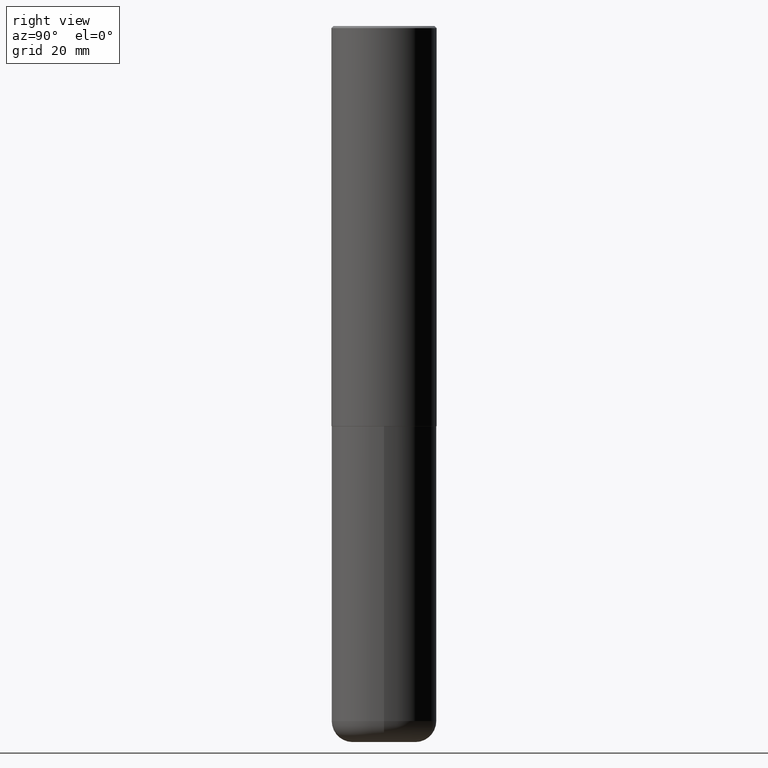
[diagram: clean part render]
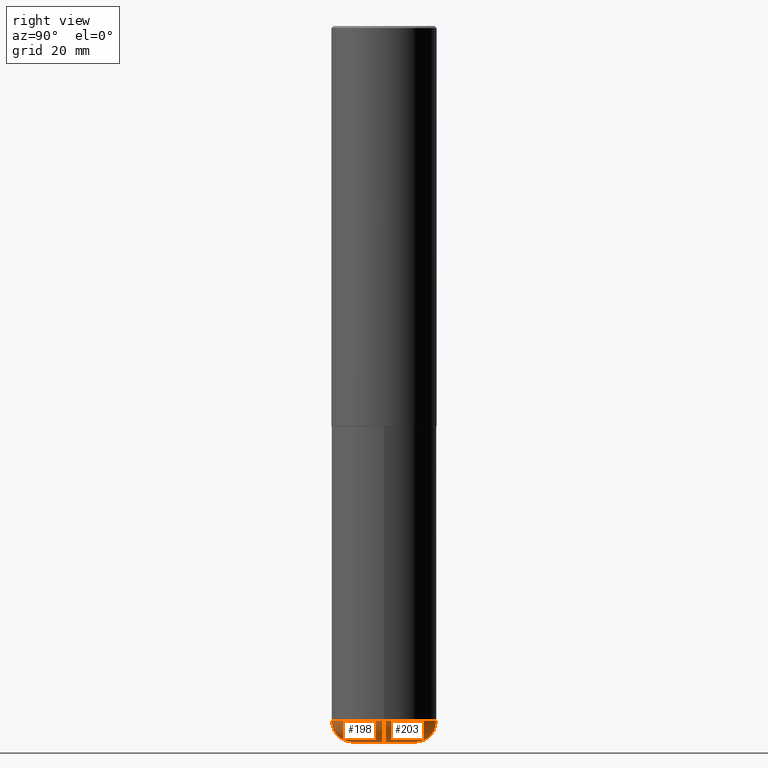
[diagram: same view with one multi-face feature highlighted, each face labeled with its STEP entity id]
A machine part, right view. The highlighted faces form ONE feature: a constant-radius fillet chain: 2 tangent blend faces with common blend radius 5.0013 mm. The faces share edges in the B-rep.
Their STEP definitions:
[1] entity #203 (Torus):
#29 = TOROIDAL_SURFACE ( 'NONE', #221, 0.2952499999999999569, 0.1968999999999996031 ) ;
#46 = CIRCLE ( 'NONE', #351, 0.1968999999999995754 ) ;
#69 = DIRECTION ( 'NONE',  ( -2.445468806185136597E-29, 3.491481338843145583E-15, 1.000000000000000000 ) ) ;
#71 = VERTEX_POINT ( 'NONE', #281 ) ;
#75 = DIRECTION ( 'NONE',  ( 1.000000000000000000, -6.982962677686273021E-15, 0.000000000000000000 ) ) ;
#93 = VERTEX_POINT ( 'NONE', #128 ) ;
#110 = DIRECTION ( 'NONE',  ( -6.982962677686266711E-15, -1.000000000000000000, 3.491481338843145583E-15 ) ) ;
#115 = CARTESIAN_POINT ( 'NONE',  ( -0.4921499999999997543, -1.918372670308173998E-14, -6.495999999999999552 ) ) ;
#128 = CARTESIAN_POINT ( 'NONE',  ( -0.2952500000000000124, -2.022699236424666989E-14, -6.692899999999998961 ) ) ;
#135 = FACE_OUTER_BOUND ( 'NONE', #361, .T. ) ;
#140 = AXIS2_PLACEMENT_3D ( 'NONE', #141, #208, #75 ) ;
#141 = CARTESIAN_POINT ( 'NONE',  ( 1.636727817291649742E-28, -2.336813545274328465E-14, -6.692899999999998961 ) ) ;
#147 = CARTESIAN_POINT ( 'NONE',  ( 1.588576536497864771E-28, -2.268066277712507367E-14, -6.495999999999999552 ) ) ;
#148 = CIRCLE ( 'NONE', #379, 0.1968999999999995754 ) ;
#165 = CARTESIAN_POINT ( 'NONE',  ( 0.4921499999999997543, -2.611732785894836787E-14, -6.495999999999999552 ) ) ;
#166 = CARTESIAN_POINT ( 'NONE',  ( 1.588576536497864771E-28, -2.268066277712507367E-14, -6.495999999999999552 ) ) ;
#173 = AXIS2_PLACEMENT_3D ( 'NONE', #147, #69, #239 ) ;
#180 = DIRECTION ( 'NONE',  ( 1.000000000000000000, -6.982962677686270655E-15, 0.000000000000000000 ) ) ;
#190 = EDGE_CURVE ( 'NONE', #93, #404, #46, .T. ) ;
#200 = DIRECTION ( 'NONE',  ( 7.105427357601001859E-15, 1.000000000000000000, -3.491481338843145583E-15 ) ) ;
#203 = ADVANCED_FACE ( 'NONE', ( #135 ), #29, .T. ) ;
#208 = DIRECTION ( 'NONE',  ( -2.445468806185136597E-29, 3.491481338843145583E-15, 1.000000000000000000 ) ) ;
#210 = ORIENTED_EDGE ( 'NONE', *, *, #333, .F. ) ;
#221 = AXIS2_PLACEMENT_3D ( 'NONE', #166, #356, #324 ) ;
#236 = VERTEX_POINT ( 'NONE', #165 ) ;
#239 = DIRECTION ( 'NONE',  ( 1.000000000000000000, -6.982962677686265922E-15, 0.000000000000000000 ) ) ;
#268 = ORIENTED_EDGE ( 'NONE', *, *, #413, .T. ) ;
#272 = CARTESIAN_POINT ( 'NONE',  ( 0.2952499999999999569, -2.474238250771194590E-14, -6.495999999999999552 ) ) ;
#281 = CARTESIAN_POINT ( 'NONE',  ( 0.2952500000000000124, -2.542985518333015688E-14, -6.692899999999998961 ) ) ;
#286 = CIRCLE ( 'NONE', #140, 0.2952500000000000124 ) ;
#324 = DIRECTION ( 'NONE',  ( 1.000000000000000000, -6.982962677686264344E-15, 4.883557194083111780E-29 ) ) ;
#333 = EDGE_CURVE ( 'NONE', #71, #236, #148, .T. ) ;
#351 = AXIS2_PLACEMENT_3D ( 'NONE', #354, #200, #389 ) ;
#354 = CARTESIAN_POINT ( 'NONE',  ( -0.2952499999999999569, -2.058278534979337620E-14, -6.495999999999999552 ) ) ;
#356 = DIRECTION ( 'NONE',  ( -2.445468806185136597E-29, 3.491481338843145583E-15, 1.000000000000000000 ) ) ;
#361 = EDGE_LOOP ( 'NONE', ( #268, #363, #401, #210 ) ) ;
#363 = ORIENTED_EDGE ( 'NONE', *, *, #190, .T. ) ;
#379 = AXIS2_PLACEMENT_3D ( 'NONE', #272, #110, #180 ) ;
#381 = EDGE_CURVE ( 'NONE', #236, #404, #392, .T. ) ;
#389 = DIRECTION ( 'NONE',  ( -1.000000000000000000, 7.105427357601008170E-15, 0.000000000000000000 ) ) ;
#392 = CIRCLE ( 'NONE', #173, 0.4921499999999999764 ) ;
#401 = ORIENTED_EDGE ( 'NONE', *, *, #381, .F. ) ;
#404 = VERTEX_POINT ( 'NONE', #115 ) ;
#413 = EDGE_CURVE ( 'NONE', #71, #93, #286, .T. ) ;
[2] entity #198 (Torus):
#9 = ORIENTED_EDGE ( 'NONE', *, *, #395, .T. ) ;
#11 = DIRECTION ( 'NONE',  ( -2.445468806185136597E-29, 3.491481338843145583E-15, 1.000000000000000000 ) ) ;
#15 = EDGE_LOOP ( 'NONE', ( #95, #9, #349, #216 ) ) ;
#16 = DIRECTION ( 'NONE',  ( 1.000000000000000000, -6.982962677686265922E-15, 0.000000000000000000 ) ) ;
#17 = AXIS2_PLACEMENT_3D ( 'NONE', #231, #68, #32 ) ;
#32 = DIRECTION ( 'NONE',  ( 1.000000000000000000, -6.982962677686264344E-15, 4.883557194083111780E-29 ) ) ;
#46 = CIRCLE ( 'NONE', #351, 0.1968999999999995754 ) ;
#67 = AXIS2_PLACEMENT_3D ( 'NONE', #72, #405, #16 ) ;
#68 = DIRECTION ( 'NONE',  ( -2.445468806185136597E-29, 3.491481338843145583E-15, 1.000000000000000000 ) ) ;
#71 = VERTEX_POINT ( 'NONE', #281 ) ;
#72 = CARTESIAN_POINT ( 'NONE',  ( 1.588576536497864771E-28, -2.268066277712507367E-14, -6.495999999999999552 ) ) ;
#73 = TOROIDAL_SURFACE ( 'NONE', #17, 0.2952499999999999569, 0.1968999999999996031 ) ;
#93 = VERTEX_POINT ( 'NONE', #128 ) ;
#95 = ORIENTED_EDGE ( 'NONE', *, *, #190, .F. ) ;
#110 = DIRECTION ( 'NONE',  ( -6.982962677686266711E-15, -1.000000000000000000, 3.491481338843145583E-15 ) ) ;
#115 = CARTESIAN_POINT ( 'NONE',  ( -0.4921499999999997543, -1.918372670308173998E-14, -6.495999999999999552 ) ) ;
#128 = CARTESIAN_POINT ( 'NONE',  ( -0.2952500000000000124, -2.022699236424666989E-14, -6.692899999999998961 ) ) ;
#148 = CIRCLE ( 'NONE', #379, 0.1968999999999995754 ) ;
#165 = CARTESIAN_POINT ( 'NONE',  ( 0.4921499999999997543, -2.611732785894836787E-14, -6.495999999999999552 ) ) ;
#174 = DIRECTION ( 'NONE',  ( 1.000000000000000000, -6.982962677686273021E-15, 0.000000000000000000 ) ) ;
#180 = DIRECTION ( 'NONE',  ( 1.000000000000000000, -6.982962677686270655E-15, 0.000000000000000000 ) ) ;
#189 = CIRCLE ( 'NONE', #332, 0.2952500000000000124 ) ;
#190 = EDGE_CURVE ( 'NONE', #93, #404, #46, .T. ) ;
#198 = ADVANCED_FACE ( 'NONE', ( #290 ), #73, .T. ) ;
#200 = DIRECTION ( 'NONE',  ( 7.105427357601001859E-15, 1.000000000000000000, -3.491481338843145583E-15 ) ) ;
#204 = CARTESIAN_POINT ( 'NONE',  ( 1.636727817291649742E-28, -2.336813545274328465E-14, -6.692899999999998961 ) ) ;
#216 = ORIENTED_EDGE ( 'NONE', *, *, #358, .F. ) ;
#231 = CARTESIAN_POINT ( 'NONE',  ( 1.588576536497864771E-28, -2.268066277712507367E-14, -6.495999999999999552 ) ) ;
#236 = VERTEX_POINT ( 'NONE', #165 ) ;
#253 = CIRCLE ( 'NONE', #67, 0.4921499999999999764 ) ;
#272 = CARTESIAN_POINT ( 'NONE',  ( 0.2952499999999999569, -2.474238250771194590E-14, -6.495999999999999552 ) ) ;
#281 = CARTESIAN_POINT ( 'NONE',  ( 0.2952500000000000124, -2.542985518333015688E-14, -6.692899999999998961 ) ) ;
#290 = FACE_OUTER_BOUND ( 'NONE', #15, .T. ) ;
#332 = AXIS2_PLACEMENT_3D ( 'NONE', #204, #11, #174 ) ;
#333 = EDGE_CURVE ( 'NONE', #71, #236, #148, .T. ) ;
#349 = ORIENTED_EDGE ( 'NONE', *, *, #333, .T. ) ;
#351 = AXIS2_PLACEMENT_3D ( 'NONE', #354, #200, #389 ) ;
#354 = CARTESIAN_POINT ( 'NONE',  ( -0.2952499999999999569, -2.058278534979337620E-14, -6.495999999999999552 ) ) ;
#358 = EDGE_CURVE ( 'NONE', #404, #236, #253, .T. ) ;
#379 = AXIS2_PLACEMENT_3D ( 'NONE', #272, #110, #180 ) ;
#389 = DIRECTION ( 'NONE',  ( -1.000000000000000000, 7.105427357601008170E-15, 0.000000000000000000 ) ) ;
#395 = EDGE_CURVE ( 'NONE', #93, #71, #189, .T. ) ;
#404 = VERTEX_POINT ( 'NONE', #115 ) ;
#405 = DIRECTION ( 'NONE',  ( -2.445468806185136597E-29, 3.491481338843145583E-15, 1.000000000000000000 ) ) ;